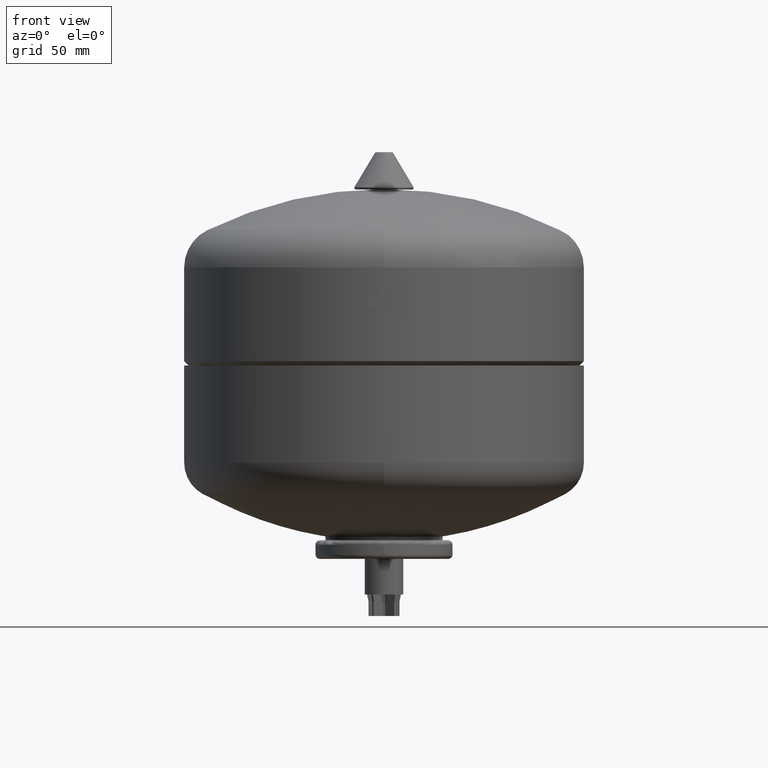
[diagram: clean part render]
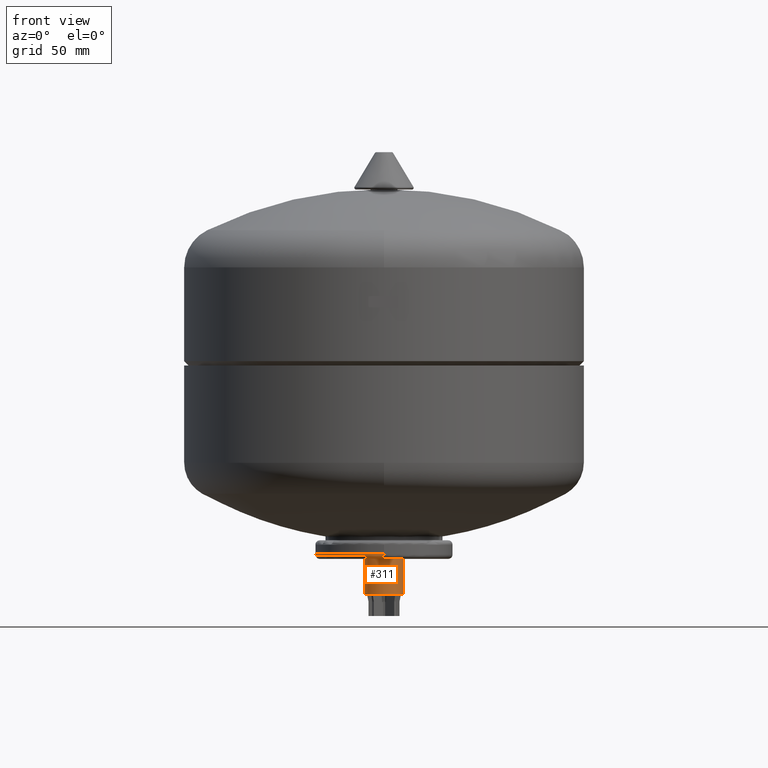
[diagram: same view with one face highlighted and labeled with its STEP entity id]
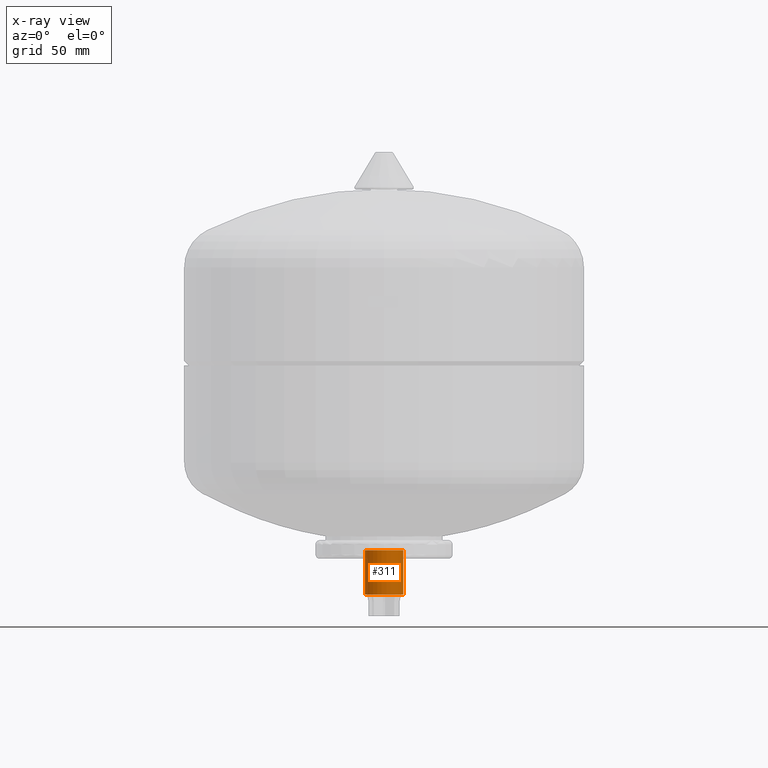
[diagram: x-ray of the same camera — body ghosted, the highlighted face saturated]
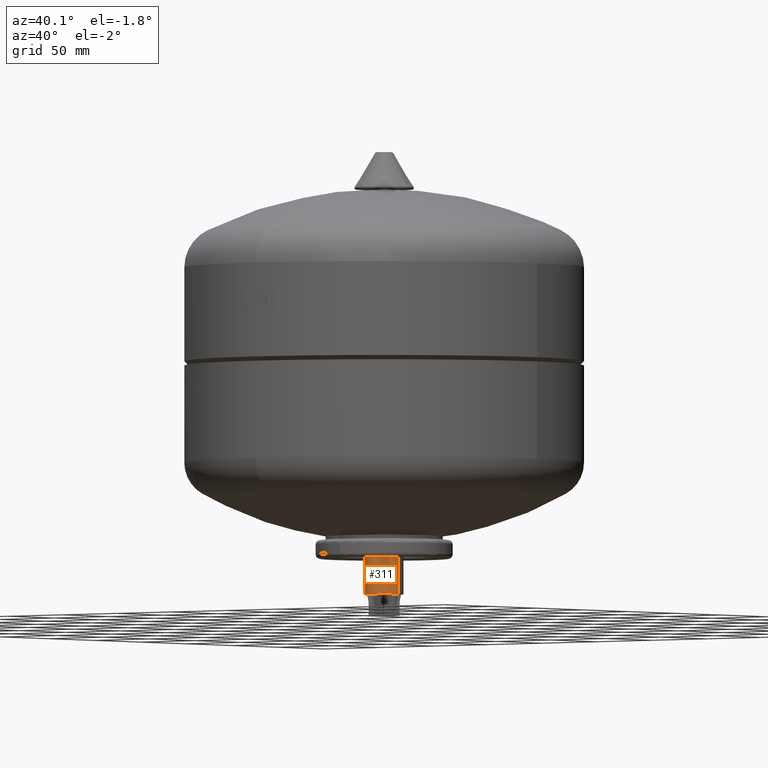
[diagram: same view with one face highlighted and labeled with its STEP entity id]
A machine part, front view. The second image highlights one B-rep face of the part: STEP entity #311.
The next image is the same camera in x-ray: the body ghosted, the highlighted face saturated — about 0% of this face is hidden behind the body in this view.
A second angle (auxiliary view) of the same face is appended — the face is thin or edge-on in the first view.
In plain terms, the highlighted cylindrical surface (edge-blend (fillet) strip) has radius 13.45 mm, axis along (0, 0, 1).
Its self-contained STEP definition (entity closure, byte-faithful):
#270=CARTESIAN_POINT('',(0.0,0.0,15.0));
#271=DIRECTION('',(0.0,0.0,1.0));
#272=DIRECTION('',(1.0,0.0,0.0));
#273=AXIS2_PLACEMENT_3D('',#270,#271,#272);
#274=CYLINDRICAL_SURFACE('',#273,13.449999999999999);
#275=CARTESIAN_POINT('',(13.449999999999999,0.0,45.999999999999986));
#276=VERTEX_POINT('',#275);
#277=CARTESIAN_POINT('',(13.449999999999999,0.0,15.0));
#278=VERTEX_POINT('',#277);
#279=CARTESIAN_POINT('',(13.449999999999999,0.0,45.999999999999986));
#280=DIRECTION('',(0.0,0.0,-1.0));
#281=VECTOR('',#280,30.999999999999986);
#282=LINE('',#279,#281);
#283=EDGE_CURVE('',#276,#278,#282,.T.);
#284=ORIENTED_EDGE('',*,*,#283,.F.);
#285=CARTESIAN_POINT('',(-13.449999999999999,1.647096E-015,45.999999999999993));
#286=VERTEX_POINT('',#285);
#287=CARTESIAN_POINT('',(0.0,0.0,45.999999999999993));
#288=DIRECTION('',(0.0,0.0,-1.0));
#289=DIRECTION('',(1.0,0.0,0.0));
#290=AXIS2_PLACEMENT_3D('',#287,#288,#289);
#291=CIRCLE('',#290,13.449999999999999);
#292=EDGE_CURVE('',#276,#286,#291,.T.);
#293=ORIENTED_EDGE('',*,*,#292,.T.);
#294=CARTESIAN_POINT('',(-13.449999999999999,-1.647096E-015,15.0));
#295=VERTEX_POINT('',#294);
#296=CARTESIAN_POINT('',(-13.449999999999999,1.647096E-015,45.999999999999993));
#297=DIRECTION('',(0.0,0.0,-1.0));
#298=VECTOR('',#297,30.999999999999993);
#299=LINE('',#296,#298);
#300=EDGE_CURVE('',#286,#295,#299,.T.);
#301=ORIENTED_EDGE('',*,*,#300,.T.);
#302=CARTESIAN_POINT('',(0.0,0.0,15.0));
#303=DIRECTION('',(0.0,0.0,1.0));
#304=DIRECTION('',(1.0,0.0,0.0));
#305=AXIS2_PLACEMENT_3D('',#302,#303,#304);
#306=CIRCLE('',#305,13.449999999999999);
#307=EDGE_CURVE('',#295,#278,#306,.T.);
#308=ORIENTED_EDGE('',*,*,#307,.T.);
#309=EDGE_LOOP('',(#284,#293,#301,#308));
#310=FACE_OUTER_BOUND('',#309,.T.);
#311=ADVANCED_FACE('',(#310),#274,.T.);